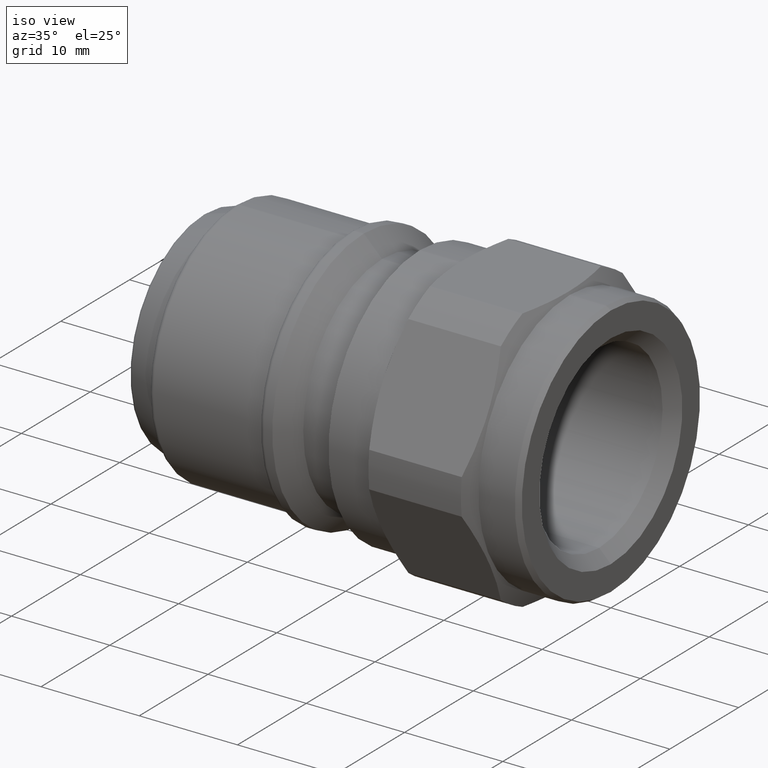
[diagram: clean part render]
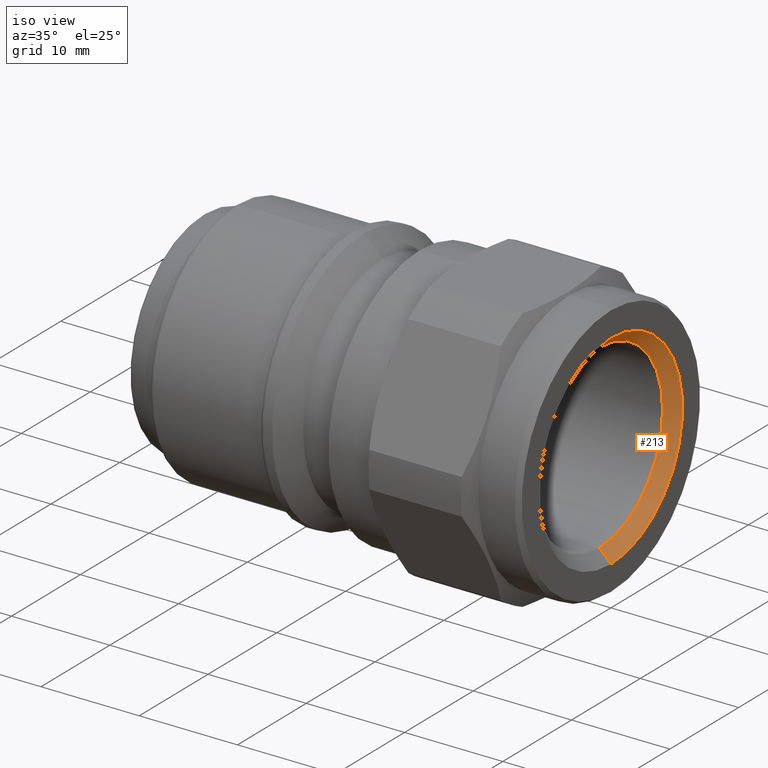
[diagram: same view with one face highlighted and labeled with its STEP entity id]
A machine part, iso view. The second image highlights one B-rep face of the part: STEP entity #213.
In plain terms, the highlighted conical surface has half-angle 45 deg.
Its self-contained STEP definition (entity closure, byte-faithful):
#26 = VERTEX_POINT ( 'NONE', #109 ) ;
#46 = VERTEX_POINT ( 'NONE', #129 ) ;
#75 = VERTEX_POINT ( 'NONE', #162 ) ;
#109 = CARTESIAN_POINT ( 'NONE',  ( -1.184999999999984100, 1.128512025414285800E-015, -9.214999999999999900 ) ) ;
#129 = CARTESIAN_POINT ( 'NONE',  ( 0.0000000000000000000, 1.273632671113247300E-015, 10.40000000000000000 ) ) ;
#162 = CARTESIAN_POINT ( 'NONE',  ( -1.184999999999984100, 0.0000000000000000000, 9.214999999999999900 ) ) ;
#213 = ADVANCED_FACE ( 'NONE', ( #987 ), #988, .F. ) ;
#309 = CARTESIAN_POINT ( 'NONE',  ( 0.0000000000000000000, 0.0000000000000000000, -10.40000000000000000 ) ) ;
#612 = ORIENTED_EDGE ( 'NONE', *, *, #1389, .F. ) ;
#613 = ORIENTED_EDGE ( 'NONE', *, *, #1470, .T. ) ;
#615 = ORIENTED_EDGE ( 'NONE', *, *, #1390, .T. ) ;
#806 = EDGE_LOOP ( 'NONE', ( #859, #615, #613, #612 ) ) ;
#859 = ORIENTED_EDGE ( 'NONE', *, *, #1472, .F. ) ;
#987 = FACE_OUTER_BOUND ( 'NONE', #806, .T. ) ;
#988 = CONICAL_SURFACE ( 'NONE', #1330, 10.40000000000000000, 0.7853981633974405100 ) ;
#1159 = VERTEX_POINT ( 'NONE', #309 ) ;
#1172 = DIRECTION ( 'NONE',  ( 0.7071067811865531200, 0.0000000000000000000, -0.7071067811865420200 ) ) ;
#1176 = DIRECTION ( 'NONE',  ( 0.7071067811865531200, 8.659560562354866300E-017, 0.7071067811865420200 ) ) ;
#1177 = CARTESIAN_POINT ( 'NONE',  ( 0.0000000000000000000, 1.273632671113247300E-015, 10.40000000000000000 ) ) ;
#1178 = CARTESIAN_POINT ( 'NONE',  ( 0.0000000000000000000, 0.0000000000000000000, -10.40000000000000000 ) ) ;
#1258 = AXIS2_PLACEMENT_3D ( 'NONE', #1713, #1714, #1715 ) ;
#1259 = AXIS2_PLACEMENT_3D ( 'NONE', #1708, #1709, #1712 ) ;
#1330 = AXIS2_PLACEMENT_3D ( 'NONE', #1642, #1641, #1649 ) ;
#1389 = EDGE_CURVE ( 'NONE', #46, #1159, #2014, .T. ) ;
#1390 = EDGE_CURVE ( 'NONE', #75, #26, #2161, .T. ) ;
#1470 = EDGE_CURVE ( 'NONE', #26, #1159, #2115, .T. ) ;
#1472 = EDGE_CURVE ( 'NONE', #75, #46, #2001, .T. ) ;
#1641 = DIRECTION ( 'NONE',  ( 1.000000000000000000, 0.0000000000000000000, 0.0000000000000000000 ) ) ;
#1642 = CARTESIAN_POINT ( 'NONE',  ( 0.0000000000000000000, 0.0000000000000000000, 0.0000000000000000000 ) ) ;
#1649 = DIRECTION ( 'NONE',  ( 0.0000000000000000000, 0.0000000000000000000, -1.000000000000000000 ) ) ;
#1708 = CARTESIAN_POINT ( 'NONE',  ( 0.0000000000000000000, 0.0000000000000000000, 0.0000000000000000000 ) ) ;
#1709 = DIRECTION ( 'NONE',  ( -1.000000000000000000, 0.0000000000000000000, 0.0000000000000000000 ) ) ;
#1712 = DIRECTION ( 'NONE',  ( 0.0000000000000000000, 0.0000000000000000000, 1.000000000000000000 ) ) ;
#1713 = CARTESIAN_POINT ( 'NONE',  ( -1.184999999999984100, 0.0000000000000000000, 0.0000000000000000000 ) ) ;
#1714 = DIRECTION ( 'NONE',  ( -1.000000000000000000, 0.0000000000000000000, 0.0000000000000000000 ) ) ;
#1715 = DIRECTION ( 'NONE',  ( 0.0000000000000000000, 0.0000000000000000000, 1.000000000000000000 ) ) ;
#2001 = LINE ( 'NONE', #1177, #2047 ) ;
#2014 = CIRCLE ( 'NONE', #1259, 10.40000000000000000 ) ;
#2047 = VECTOR ( 'NONE', #1176, 999.9999999999998900 ) ;
#2115 = LINE ( 'NONE', #1178, #2122 ) ;
#2122 = VECTOR ( 'NONE', #1172, 999.9999999999998900 ) ;
#2161 = CIRCLE ( 'NONE', #1258, 9.214999999999999900 ) ;